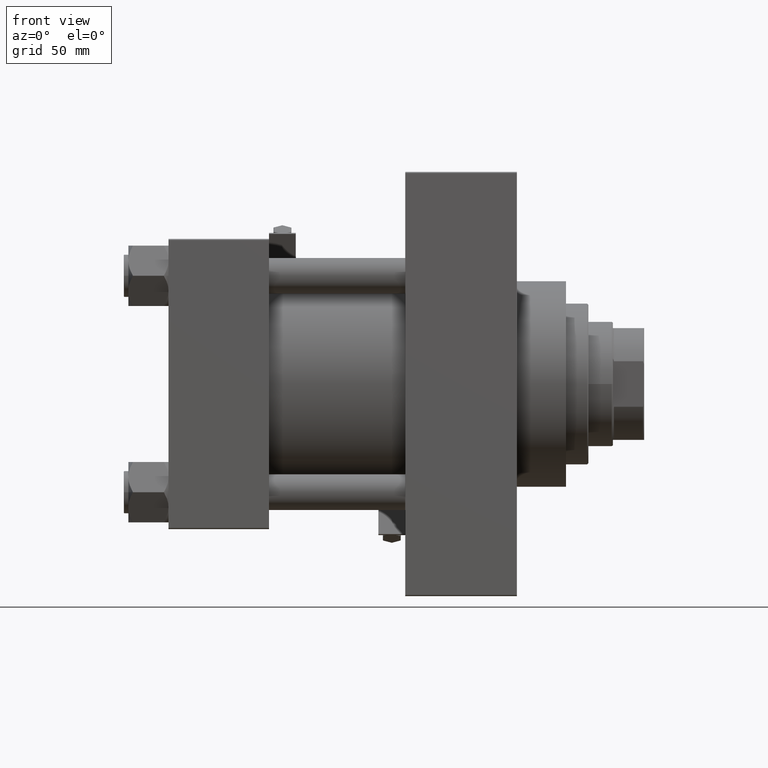
[diagram: clean part render]
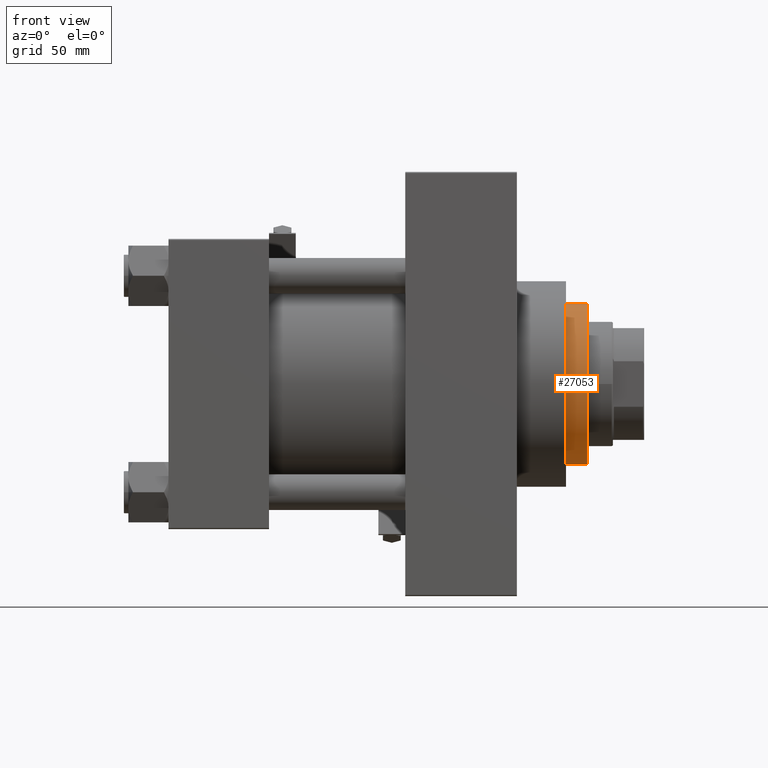
[diagram: same view with one face highlighted and labeled with its STEP entity id]
A machine part, front view. The second image highlights one B-rep face of the part: STEP entity #27053.
In plain terms, the highlighted cylindrical surface (partial cylindrical patch) has radius 36 mm, axis along (-1, 0, 0).
Its self-contained STEP definition (entity closure, byte-faithful):
#1682 = VERTEX_POINT ( 'NONE', #5447 ) ;
#2139 = FACE_OUTER_BOUND ( 'NONE', #18666, .T. ) ;
#2513 = EDGE_CURVE ( 'NONE', #1682, #40282, #37621, .T. ) ;
#3311 = CARTESIAN_POINT ( 'NONE',  ( -36.00000000000000000, 0.000000000000000000, 53.26000000000000512 ) ) ;
#3840 = DIRECTION ( 'NONE',  ( 1.000000000000000000, 0.000000000000000000, 0.000000000000000000 ) ) ;
#5447 = CARTESIAN_POINT ( 'NONE',  ( 36.00000000000000000, 4.408728476930470856E-15, 43.25999999999999801 ) ) ;
#6886 = ORIENTED_EDGE ( 'NONE', *, *, #11557, .T. ) ;
#7007 = LINE ( 'NONE', #3311, #21739 ) ;
#8325 = AXIS2_PLACEMENT_3D ( 'NONE', #36414, #17663, #47298 ) ;
#8454 = AXIS2_PLACEMENT_3D ( 'NONE', #45293, #30226, #3840 ) ;
#8675 = DIRECTION ( 'NONE',  ( 0.000000000000000000, 0.000000000000000000, -1.000000000000000000 ) ) ;
#9780 = ORIENTED_EDGE ( 'NONE', *, *, #23582, .F. ) ;
#11557 = EDGE_CURVE ( 'NONE', #47599, #29142, #31679, .T. ) ;
#12705 = ORIENTED_EDGE ( 'NONE', *, *, #2513, .T. ) ;
#12853 = DIRECTION ( 'NONE',  ( 1.000000000000000000, 0.000000000000000000, 0.000000000000000000 ) ) ;
#14120 = DIRECTION ( 'NONE',  ( -0.000000000000000000, -0.000000000000000000, -1.000000000000000000 ) ) ;
#17190 = CYLINDRICAL_SURFACE ( 'NONE', #8325, 36.00000000000000000 ) ;
#17198 = CARTESIAN_POINT ( 'NONE',  ( -36.00000000000000000, 0.000000000000000000, 43.25999999999999801 ) ) ;
#17663 = DIRECTION ( 'NONE',  ( -0.000000000000000000, -0.000000000000000000, -1.000000000000000000 ) ) ;
#18666 = EDGE_LOOP ( 'NONE', ( #6886, #29566, #12705, #9780 ) ) ;
#21739 = VECTOR ( 'NONE', #37355, 1000.000000000000000 ) ;
#23582 = EDGE_CURVE ( 'NONE', #47599, #40282, #7007, .T. ) ;
#26164 = CARTESIAN_POINT ( 'NONE',  ( 36.00000000000000000, 4.408728476930470856E-15, 52.76000000000001933 ) ) ;
#27053 = ADVANCED_FACE ( 'NONE', ( #2139 ), #17190, .T. ) ;
#29142 = VERTEX_POINT ( 'NONE', #26164 ) ;
#29566 = ORIENTED_EDGE ( 'NONE', *, *, #36324, .T. ) ;
#30226 = DIRECTION ( 'NONE',  ( 0.000000000000000000, 0.000000000000000000, 1.000000000000000000 ) ) ;
#30904 = VECTOR ( 'NONE', #14120, 1000.000000000000000 ) ;
#31679 = CIRCLE ( 'NONE', #40354, 36.00000000000000000 ) ;
#36324 = EDGE_CURVE ( 'NONE', #29142, #1682, #48433, .T. ) ;
#36414 = CARTESIAN_POINT ( 'NONE',  ( 0.000000000000000000, 0.000000000000000000, 53.26000000000000512 ) ) ;
#37355 = DIRECTION ( 'NONE',  ( -0.000000000000000000, -0.000000000000000000, -1.000000000000000000 ) ) ;
#37621 = CIRCLE ( 'NONE', #8454, 36.00000000000000000 ) ;
#38557 = CARTESIAN_POINT ( 'NONE',  ( 0.000000000000000000, 0.000000000000000000, 52.76000000000001933 ) ) ;
#40282 = VERTEX_POINT ( 'NONE', #17198 ) ;
#40354 = AXIS2_PLACEMENT_3D ( 'NONE', #38557, #8675, #12853 ) ;
#45293 = CARTESIAN_POINT ( 'NONE',  ( 0.000000000000000000, 0.000000000000000000, 43.25999999999999801 ) ) ;
#47298 = DIRECTION ( 'NONE',  ( -1.000000000000000000, 0.000000000000000000, 0.000000000000000000 ) ) ;
#47599 = VERTEX_POINT ( 'NONE', #47953 ) ;
#47942 = CARTESIAN_POINT ( 'NONE',  ( 36.00000000000000000, 4.408728476930470856E-15, 53.26000000000000512 ) ) ;
#47953 = CARTESIAN_POINT ( 'NONE',  ( -36.00000000000000000, 0.000000000000000000, 52.76000000000001933 ) ) ;
#48433 = LINE ( 'NONE', #47942, #30904 ) ;